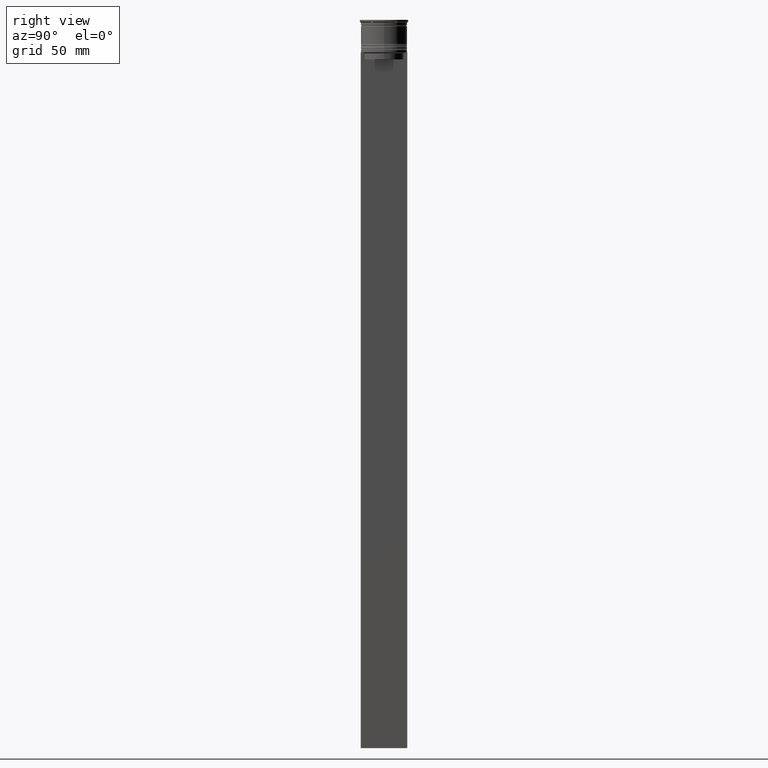
[diagram: clean part render]
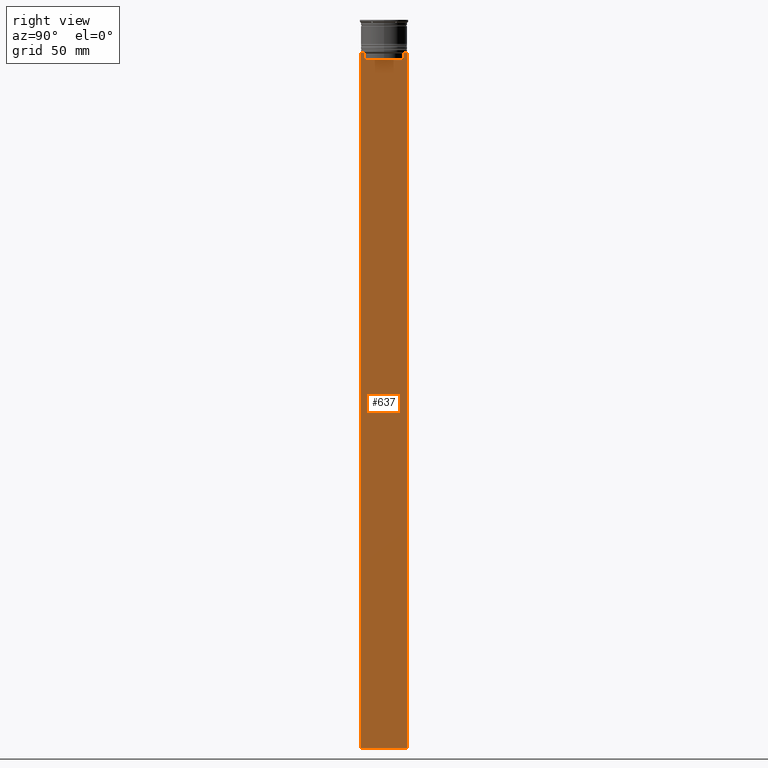
[diagram: same view with one face highlighted and labeled with its STEP entity id]
A machine part, right view. The second image highlights one B-rep face of the part: STEP entity #637.
In plain terms, the highlighted planar face has unit normal (-1, 0, 0).
Its self-contained STEP definition (entity closure, byte-faithful):
#6 = VERTEX_POINT ( 'NONE', #2378 ) ;
#7 = CARTESIAN_POINT ( 'NONE',  ( 0.5000000000000000000, -8.885943956609230199, -14.00000000000000178 ) ) ;
#13 = EDGE_CURVE ( 'NONE', #2043, #1608, #2212, .T. ) ;
#31 = LINE ( 'NONE', #823, #2539 ) ;
#54 = VERTEX_POINT ( 'NONE', #536 ) ;
#106 = ORIENTED_EDGE ( 'NONE', *, *, #2088, .T. ) ;
#121 = FACE_OUTER_BOUND ( 'NONE', #1831, .T. ) ;
#129 = ORIENTED_EDGE ( 'NONE', *, *, #2513, .T. ) ;
#136 = DIRECTION ( 'NONE',  ( 0.000000000000000000, -1.000000000000000000, 0.000000000000000000 ) ) ;
#219 = CARTESIAN_POINT ( 'NONE',  ( 0.5000000000000000000, -10.00000000000000178, 6.024984394500783047 ) ) ;
#254 = LINE ( 'NONE', #2355, #1621 ) ;
#272 = DIRECTION ( 'NONE',  ( 0.000000000000000000, -1.000000000000000000, 0.000000000000000000 ) ) ;
#301 = DIRECTION ( 'NONE',  ( 0.000000000000000000, 0.000000000000000000, 1.000000000000000000 ) ) ;
#327 = CARTESIAN_POINT ( 'NONE',  ( 0.5000000000000000000, 9.999999999999998224, 6.024984394500783047 ) ) ;
#333 = LINE ( 'NONE', #1166, #2621 ) ;
#344 = CARTESIAN_POINT ( 'NONE',  ( 0.5000000000000000000, 8.552060201981378285, -14.33334167021640582 ) ) ;
#430 = LINE ( 'NONE', #639, #1411 ) ;
#434 = DIRECTION ( 'NONE',  ( 0.000000000000000000, 1.000000000000000000, 0.000000000000000000 ) ) ;
#447 = VECTOR ( 'NONE', #1450, 1000.000000000000000 ) ;
#515 = CARTESIAN_POINT ( 'NONE',  ( 0.5000000000000000000, 8.885943956609230199, -14.00000000000000178 ) ) ;
#536 = CARTESIAN_POINT ( 'NONE',  ( 0.5000000000000000000, 8.885943956609230199, -14.00000000000000178 ) ) ;
#621 = CARTESIAN_POINT ( 'NONE',  ( 0.5000000000000000000, -8.719005764482790966, -14.16667454151159689 ) ) ;
#637 = ADVANCED_FACE ( 'NONE', ( #121 ), #1118, .F. ) ;
#639 = CARTESIAN_POINT ( 'NONE',  ( 0.5000000000000000000, -10.00000000000000178, -14.00000000000000178 ) ) ;
#644 = ORIENTED_EDGE ( 'NONE', *, *, #1597, .T. ) ;
#658 = EDGE_CURVE ( 'NONE', #1779, #2304, #917, .T. ) ;
#684 = CARTESIAN_POINT ( 'NONE',  ( 0.5000000000000000000, -10.00000000000000178, -14.00000000000000178 ) ) ;
#756 = VERTEX_POINT ( 'NONE', #956 ) ;
#799 = CARTESIAN_POINT ( 'NONE',  ( 0.5000000000000000000, -8.552060194457773434, -14.33334167772667023 ) ) ;
#823 = CARTESIAN_POINT ( 'NONE',  ( 0.5000000000000000000, 8.385105843100616241, 0.000000000000000000 ) ) ;
#867 = VERTEX_POINT ( 'NONE', #2537 ) ;
#889 = LINE ( 'NONE', #327, #2037 ) ;
#917 = LINE ( 'NONE', #1737, #1003 ) ;
#936 = CARTESIAN_POINT ( 'NONE',  ( 0.5000000000000000000, -10.00000000000000178, 6.024984394500783047 ) ) ;
#956 = CARTESIAN_POINT ( 'NONE',  ( 0.5000000000000000000, -8.385105843100616241, -17.00000000000000000 ) ) ;
#966 = AXIS2_PLACEMENT_3D ( 'NONE', #936, #1366, #301 ) ;
#977 = CARTESIAN_POINT ( 'NONE',  ( 0.5000000000000000000, -8.385105843100616241, 0.000000000000000000 ) ) ;
#997 = ORIENTED_EDGE ( 'NONE', *, *, #2334, .F. ) ;
#998 = EDGE_CURVE ( 'NONE', #2304, #2236, #254, .T. ) ;
#1003 = VECTOR ( 'NONE', #1767, 1000.000000000000000 ) ;
#1064 = DIRECTION ( 'NONE',  ( 0.000000000000000000, -1.000000000000000000, 0.000000000000000000 ) ) ;
#1089 = DIRECTION ( 'NONE',  ( 0.000000000000000000, -1.000000000000000000, 0.000000000000000000 ) ) ;
#1118 = PLANE ( 'NONE',  #966 ) ;
#1123 = ORIENTED_EDGE ( 'NONE', *, *, #1367, .T. ) ;
#1138 = CARTESIAN_POINT ( 'NONE',  ( 0.5000000000000000000, 8.719005771582347464, -14.16667453442325453 ) ) ;
#1147 = VECTOR ( 'NONE', #1797, 1000.000000000000000 ) ;
#1155 = CARTESIAN_POINT ( 'NONE',  ( 0.5000000000000000000, 8.385105843100616241, -17.00000000000000000 ) ) ;
#1165 = CARTESIAN_POINT ( 'NONE',  ( 0.5000000000000000000, -10.00000000000000178, -314.0000000000000000 ) ) ;
#1166 = CARTESIAN_POINT ( 'NONE',  ( 0.5000000000000000000, 8.400000000000003908, -17.00000000000000000 ) ) ;
#1218 = CARTESIAN_POINT ( 'NONE',  ( 0.5000000000000000000, -10.00000000000000178, -14.00000000000000178 ) ) ;
#1248 = CARTESIAN_POINT ( 'NONE',  ( 0.5000000000000000000, -8.385105843100616241, -14.50000000000000000 ) ) ;
#1254 = DIRECTION ( 'NONE',  ( 0.000000000000000000, 0.000000000000000000, -1.000000000000000000 ) ) ;
#1296 = ORIENTED_EDGE ( 'NONE', *, *, #1688, .T. ) ;
#1306 = B_SPLINE_CURVE_WITH_KNOTS ( 'NONE', 3,
 ( #2291, #799, #621, #2305 ),
 .UNSPECIFIED., .F., .F.,
 ( 4, 4 ),
 ( 0.03898465126933130243, 0.03969388910599658260 ),
 .UNSPECIFIED. ) ;
#1355 = CARTESIAN_POINT ( 'NONE',  ( 0.5000000000000000000, 8.385105843100616241, -14.50000000000000000 ) ) ;
#1366 = DIRECTION ( 'NONE',  ( -1.000000000000000000, 0.000000000000000000, 0.000000000000000000 ) ) ;
#1367 = EDGE_CURVE ( 'NONE', #1421, #1779, #1306, .T. ) ;
#1372 = CARTESIAN_POINT ( 'NONE',  ( 0.5000000000000000000, -10.00000000000000178, -314.0000000000000000 ) ) ;
#1410 = B_SPLINE_CURVE_WITH_KNOTS ( 'NONE', 3,
 ( #515, #1138, #344, #1355 ),
 .UNSPECIFIED., .F., .F.,
 ( 4, 4 ),
 ( 0.01511546479386908018, 0.01582316445439079997 ),
 .UNSPECIFIED. ) ;
#1411 = VECTOR ( 'NONE', #1064, 1000.000000000000000 ) ;
#1417 = ORIENTED_EDGE ( 'NONE', *, *, #1874, .T. ) ;
#1421 = VERTEX_POINT ( 'NONE', #1248 ) ;
#1450 = DIRECTION ( 'NONE',  ( 0.000000000000000000, 0.000000000000000000, -1.000000000000000000 ) ) ;
#1554 = VERTEX_POINT ( 'NONE', #1929 ) ;
#1562 = CARTESIAN_POINT ( 'NONE',  ( 0.5000000000000000000, 9.999999999999998224, -314.0000000000000000 ) ) ;
#1566 = DIRECTION ( 'NONE',  ( 0.000000000000000000, 0.000000000000000000, -1.000000000000000000 ) ) ;
#1589 = VERTEX_POINT ( 'NONE', #1155 ) ;
#1597 = EDGE_CURVE ( 'NONE', #54, #867, #1410, .T. ) ;
#1608 = VERTEX_POINT ( 'NONE', #1562 ) ;
#1621 = VECTOR ( 'NONE', #272, 1000.000000000000000 ) ;
#1675 = VECTOR ( 'NONE', #1089, 1000.000000000000000 ) ;
#1688 = EDGE_CURVE ( 'NONE', #1589, #756, #333, .T. ) ;
#1737 = CARTESIAN_POINT ( 'NONE',  ( 0.5000000000000000000, -10.00000000000000178, -14.00000000000000178 ) ) ;
#1739 = LINE ( 'NONE', #684, #1675 ) ;
#1748 = EDGE_CURVE ( 'NONE', #867, #1589, #31, .T. ) ;
#1767 = DIRECTION ( 'NONE',  ( 0.000000000000000000, -1.000000000000000000, 0.000000000000000000 ) ) ;
#1779 = VERTEX_POINT ( 'NONE', #7 ) ;
#1797 = DIRECTION ( 'NONE',  ( -0.000000000000000000, -0.000000000000000000, 1.000000000000000000 ) ) ;
#1818 = ORIENTED_EDGE ( 'NONE', *, *, #998, .T. ) ;
#1831 = EDGE_LOOP ( 'NONE', ( #1417, #644, #2471, #1296, #106, #1123, #2483, #1818, #2246, #2274, #997, #129 ) ) ;
#1874 = EDGE_CURVE ( 'NONE', #1554, #54, #1739, .T. ) ;
#1929 = CARTESIAN_POINT ( 'NONE',  ( 0.5000000000000000000, 9.887365675446622149, -14.00000000000000178 ) ) ;
#2010 = LINE ( 'NONE', #977, #1147 ) ;
#2037 = VECTOR ( 'NONE', #1566, 1000.000000000000000 ) ;
#2043 = VERTEX_POINT ( 'NONE', #1372 ) ;
#2088 = EDGE_CURVE ( 'NONE', #756, #1421, #2010, .T. ) ;
#2126 = CARTESIAN_POINT ( 'NONE',  ( 0.5000000000000000000, -9.887365675446622149, -14.00000000000000178 ) ) ;
#2212 = LINE ( 'NONE', #1165, #2276 ) ;
#2221 = EDGE_CURVE ( 'NONE', #2236, #2043, #2656, .T. ) ;
#2236 = VERTEX_POINT ( 'NONE', #1218 ) ;
#2246 = ORIENTED_EDGE ( 'NONE', *, *, #2221, .T. ) ;
#2274 = ORIENTED_EDGE ( 'NONE', *, *, #13, .T. ) ;
#2276 = VECTOR ( 'NONE', #434, 1000.000000000000000 ) ;
#2291 = CARTESIAN_POINT ( 'NONE',  ( 0.5000000000000000000, -8.385105843100616241, -14.50000000000000000 ) ) ;
#2304 = VERTEX_POINT ( 'NONE', #2126 ) ;
#2305 = CARTESIAN_POINT ( 'NONE',  ( 0.5000000000000000000, -8.885943956609230199, -14.00000000000000178 ) ) ;
#2334 = EDGE_CURVE ( 'NONE', #6, #1608, #889, .T. ) ;
#2355 = CARTESIAN_POINT ( 'NONE',  ( 0.5000000000000000000, -10.00000000000000178, -14.00000000000000178 ) ) ;
#2378 = CARTESIAN_POINT ( 'NONE',  ( 0.5000000000000000000, 9.999999999999998224, -14.00000000000000178 ) ) ;
#2471 = ORIENTED_EDGE ( 'NONE', *, *, #1748, .T. ) ;
#2483 = ORIENTED_EDGE ( 'NONE', *, *, #658, .T. ) ;
#2513 = EDGE_CURVE ( 'NONE', #6, #1554, #430, .T. ) ;
#2537 = CARTESIAN_POINT ( 'NONE',  ( 0.5000000000000000000, 8.385105843100616241, -14.50000000000000000 ) ) ;
#2539 = VECTOR ( 'NONE', #1254, 1000.000000000000000 ) ;
#2621 = VECTOR ( 'NONE', #136, 1000.000000000000000 ) ;
#2656 = LINE ( 'NONE', #219, #447 ) ;